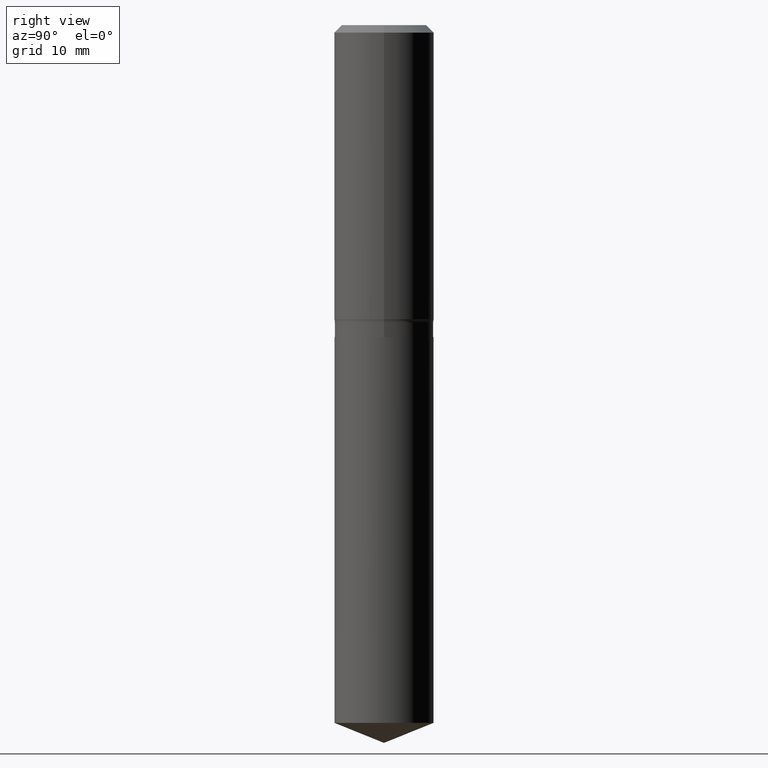
[diagram: clean part render]
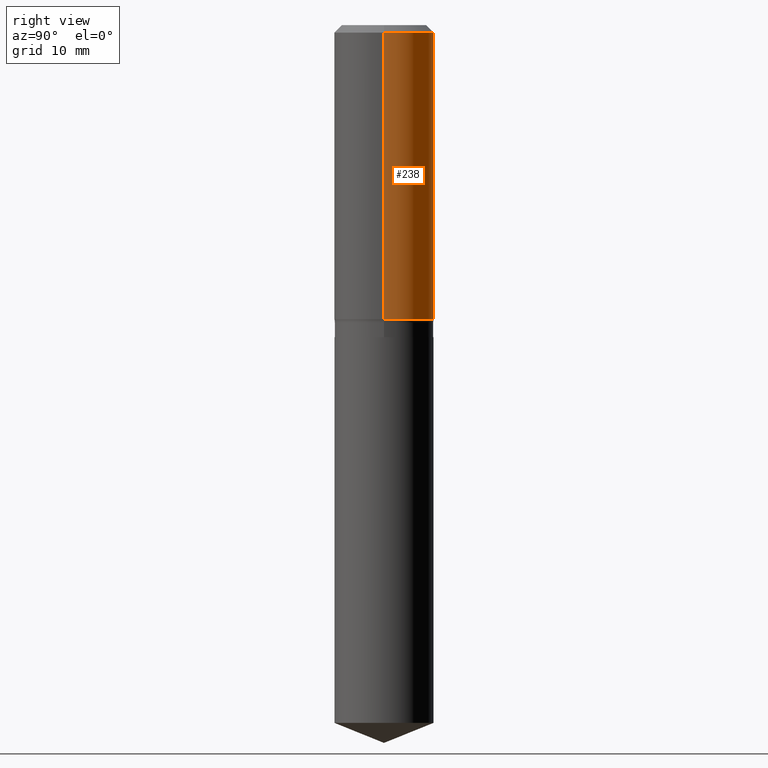
[diagram: same view with one face highlighted and labeled with its STEP entity id]
A machine part, right view. The second image highlights one B-rep face of the part: STEP entity #238.
In plain terms, the highlighted cylindrical surface (partial cylindrical patch) has radius 7.9997 mm, axis along (-0, 0, 1).
Its self-contained STEP definition (entity closure, byte-faithful):
#2 = CARTESIAN_POINT ( 'NONE',  ( 4.537088519197371614E-29, -6.477759952362211419E-15, -1.855304188596502035 ) ) ;
#14 = EDGE_LOOP ( 'NONE', ( #275, #375, #218, #128 ) ) ;
#76 = LINE ( 'NONE', #77, #156 ) ;
#77 = CARTESIAN_POINT ( 'NONE',  ( 0.3149500000000001743, -2.199284095337290660E-15, 1.535751875536930690E-29 ) ) ;
#97 = CARTESIAN_POINT ( 'NONE',  ( 0.3149500000000002853, -8.677044047699501290E-15, -1.855304188596502035 ) ) ;
#112 = FACE_OUTER_BOUND ( 'NONE', #14, .T. ) ;
#119 = VERTEX_POINT ( 'NONE', #120 ) ;
#120 = CARTESIAN_POINT ( 'NONE',  ( 0.3149500000000000077, -2.364230402487588149E-15, -0.04724250000000029120 ) ) ;
#128 = ORIENTED_EDGE ( 'NONE', *, *, #142, .F. ) ;
#129 = AXIS2_PLACEMENT_3D ( 'NONE', #2, #319, #461 ) ;
#132 = CARTESIAN_POINT ( 'NONE',  ( -0.3149500000000001743, 2.237854346276436774E-15, -1.549218606675783237E-29 ) ) ;
#134 = CARTESIAN_POINT ( 'NONE',  ( -0.3149500000000002853, -4.239905606085773857E-15, -1.855304188596502035 ) ) ;
#139 = AXIS2_PLACEMENT_3D ( 'NONE', #359, #198, #426 ) ;
#142 = EDGE_CURVE ( 'NONE', #465, #119, #76, .T. ) ;
#156 = VECTOR ( 'NONE', #283, 39.37007874015748143 ) ;
#182 = CARTESIAN_POINT ( 'NONE',  ( 1.155300600762020273E-30, -1.649463071502983032E-16, -0.04724250000000029120 ) ) ;
#186 = CIRCLE ( 'NONE', #129, 0.3149500000000002853 ) ;
#198 = DIRECTION ( 'NONE',  ( -2.445468806185136597E-29, 3.491481338843145583E-15, 1.000000000000000000 ) ) ;
#211 = AXIS2_PLACEMENT_3D ( 'NONE', #182, #480, #413 ) ;
#214 = DIRECTION ( 'NONE',  ( -2.445468806185136877E-29, 3.491481338843145188E-15, 1.000000000000000000 ) ) ;
#218 = ORIENTED_EDGE ( 'NONE', *, *, #335, .F. ) ;
#238 = ADVANCED_FACE ( 'NONE', ( #112 ), #464, .T. ) ;
#246 = VERTEX_POINT ( 'NONE', #425 ) ;
#274 = EDGE_CURVE ( 'NONE', #465, #411, #186, .T. ) ;
#275 = ORIENTED_EDGE ( 'NONE', *, *, #274, .T. ) ;
#283 = DIRECTION ( 'NONE',  ( -2.445468806185136877E-29, 3.491481338843145188E-15, 1.000000000000000000 ) ) ;
#295 = EDGE_CURVE ( 'NONE', #411, #246, #475, .T. ) ;
#296 = CIRCLE ( 'NONE', #211, 0.3149500000000000077 ) ;
#308 = VECTOR ( 'NONE', #214, 39.37007874015748143 ) ;
#319 = DIRECTION ( 'NONE',  ( -2.445468806185136597E-29, 3.491481338843145583E-15, 1.000000000000000000 ) ) ;
#335 = EDGE_CURVE ( 'NONE', #119, #246, #296, .T. ) ;
#359 = CARTESIAN_POINT ( 'NONE',  ( 0.000000000000000000, 0.000000000000000000, 0.000000000000000000 ) ) ;
#375 = ORIENTED_EDGE ( 'NONE', *, *, #295, .T. ) ;
#411 = VERTEX_POINT ( 'NONE', #134 ) ;
#413 = DIRECTION ( 'NONE',  ( 1.000000000000000000, -6.982962677686266711E-15, 0.000000000000000000 ) ) ;
#425 = CARTESIAN_POINT ( 'NONE',  ( -0.3149500000000000077, -1.083498783479817878E-15, -0.04724250000000029120 ) ) ;
#426 = DIRECTION ( 'NONE',  ( 1.000000000000000000, -6.982962677686265922E-15, 4.876176775795935232E-29 ) ) ;
#461 = DIRECTION ( 'NONE',  ( 1.000000000000000000, -6.982962677686267499E-15, 0.000000000000000000 ) ) ;
#464 = CYLINDRICAL_SURFACE ( 'NONE', #139, 0.3149500000000001743 ) ;
#465 = VERTEX_POINT ( 'NONE', #97 ) ;
#475 = LINE ( 'NONE', #132, #308 ) ;
#480 = DIRECTION ( 'NONE',  ( -2.445468806185136597E-29, 3.491481338843145583E-15, 1.000000000000000000 ) ) ;